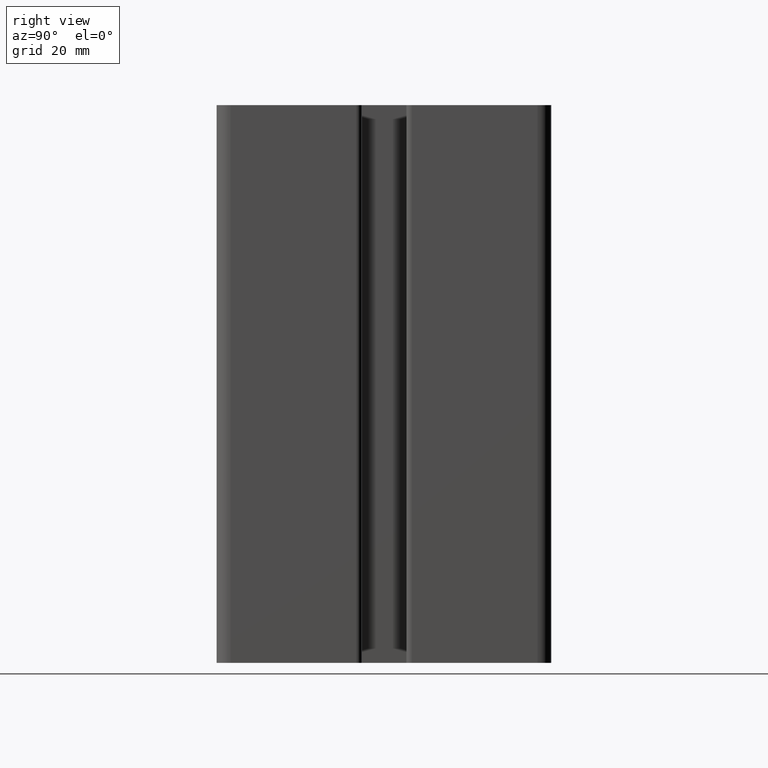
[diagram: clean part render]
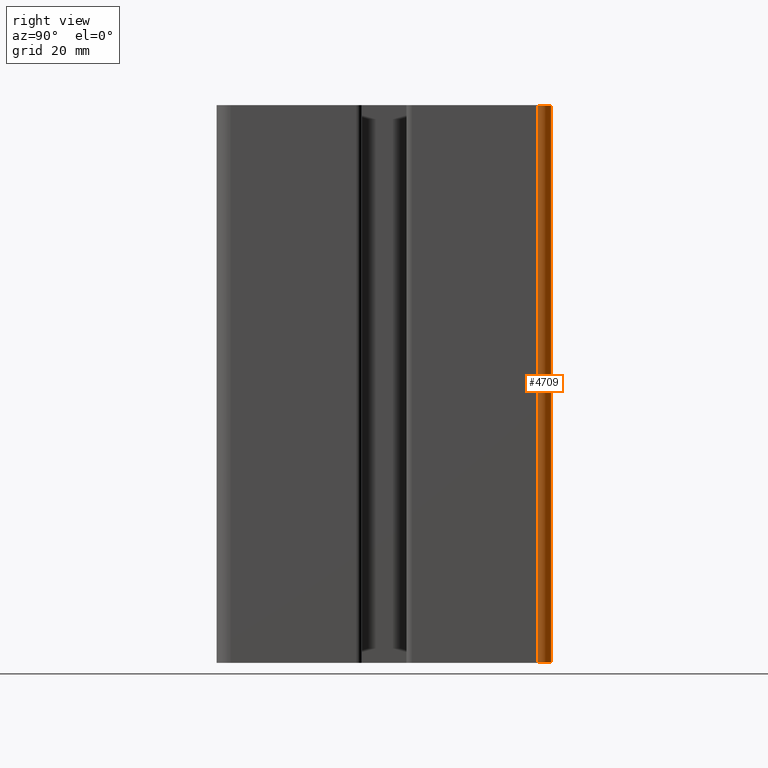
[diagram: same view with one face highlighted and labeled with its STEP entity id]
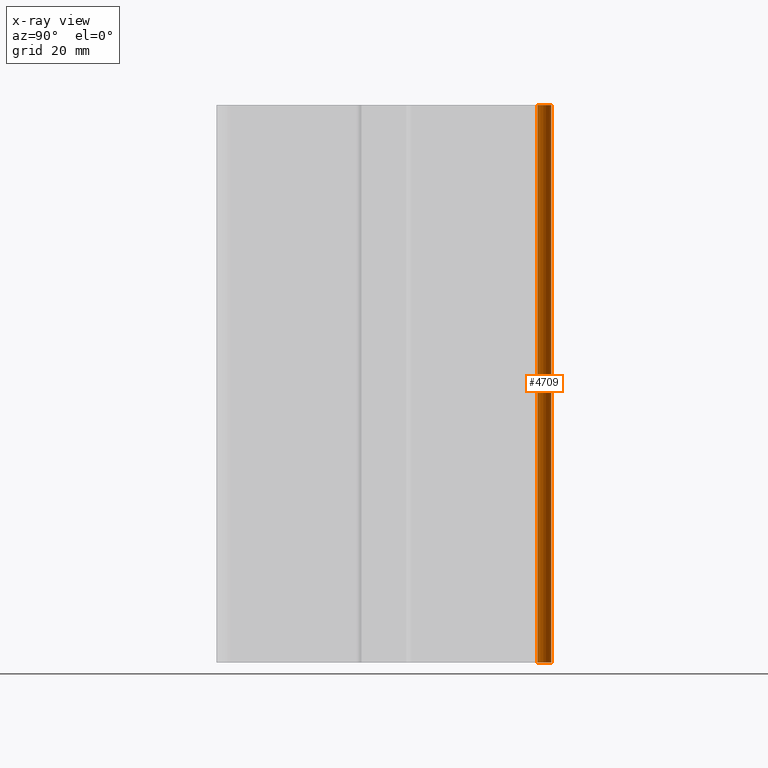
[diagram: x-ray of the same camera — body ghosted, the highlighted face saturated]
A machine part, right view. The second image highlights one B-rep face of the part: STEP entity #4709.
The next image is the same camera in x-ray: the body ghosted, the highlighted face saturated — about 0% of this face is hidden behind the body in this view.
In plain terms, the highlighted cylindrical surface (edge-blend (fillet) strip) has radius 2.5 mm, axis along (0, 0, 1).
Its self-contained STEP definition (entity closure, byte-faithful):
#381=FACE_OUTER_BOUND('',#626,.T.);
#626=EDGE_LOOP('',(#4110,#4111,#4112,#4113));
#1094=LINE('',#7956,#1558);
#1100=LINE('',#7974,#1564);
#1558=VECTOR('',#6545,100.);
#1564=VECTOR('',#6567,100.);
#1797=CIRCLE('',#5172,2.5);
#1800=CIRCLE('',#5178,2.5);
#2261=VERTEX_POINT('',#7953);
#2262=VERTEX_POINT('',#7955);
#2263=VERTEX_POINT('',#7961);
#2266=VERTEX_POINT('',#7972);
#2948=EDGE_CURVE('',#2261,#2262,#1094,.T.);
#2953=EDGE_CURVE('',#2263,#2261,#1797,.T.);
#2959=EDGE_CURVE('',#2263,#2266,#1100,.T.);
#2960=EDGE_CURVE('',#2266,#2262,#1800,.T.);
#4110=ORIENTED_EDGE('',*,*,#2960,.T.);
#4111=ORIENTED_EDGE('',*,*,#2948,.F.);
#4112=ORIENTED_EDGE('',*,*,#2953,.F.);
#4113=ORIENTED_EDGE('',*,*,#2959,.T.);
#4477=CYLINDRICAL_SURFACE('',#5177,2.5);
#4709=ADVANCED_FACE('',(#381),#4477,.T.);
#5172=AXIS2_PLACEMENT_3D('',#7963,#6554,#6555);
#5177=AXIS2_PLACEMENT_3D('',#7975,#6568,#6569);
#5178=AXIS2_PLACEMENT_3D('',#7976,#6570,#6571);
#6545=DIRECTION('',(0.,0.,1.));
#6554=DIRECTION('center_axis',(0.,0.,-1.));
#6555=DIRECTION('ref_axis',(-1.,0.,0.));
#6567=DIRECTION('',(0.,0.,1.));
#6568=DIRECTION('center_axis',(0.,0.,1.));
#6569=DIRECTION('ref_axis',(-1.,0.,0.));
#6570=DIRECTION('center_axis',(0.,0.,-1.));
#6571=DIRECTION('ref_axis',(-1.,0.,0.));
#7953=CARTESIAN_POINT('',(30.,27.5,0.));
#7955=CARTESIAN_POINT('',(30.,27.5,100.));
#7956=CARTESIAN_POINT('',(30.,27.5,0.));
#7961=CARTESIAN_POINT('',(27.5,30.,0.));
#7963=CARTESIAN_POINT('Origin',(27.5,27.5,0.));
#7972=CARTESIAN_POINT('',(27.5,30.,100.));
#7974=CARTESIAN_POINT('',(27.5,30.,0.));
#7975=CARTESIAN_POINT('Origin',(27.5,27.5,0.));
#7976=CARTESIAN_POINT('Origin',(27.5,27.5,100.));